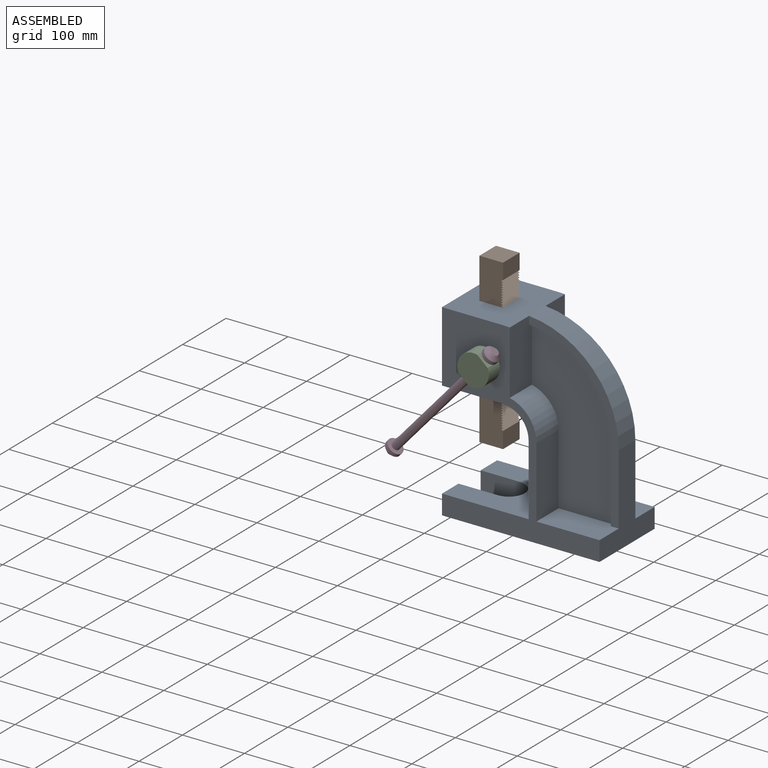
[diagram: assembled view]
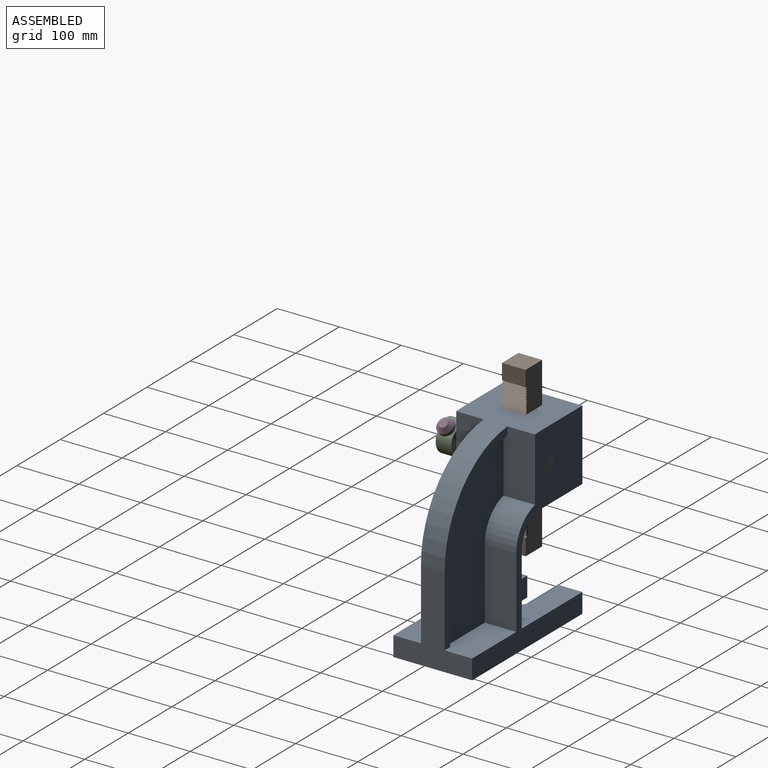
[diagram: assembled view, second angle]
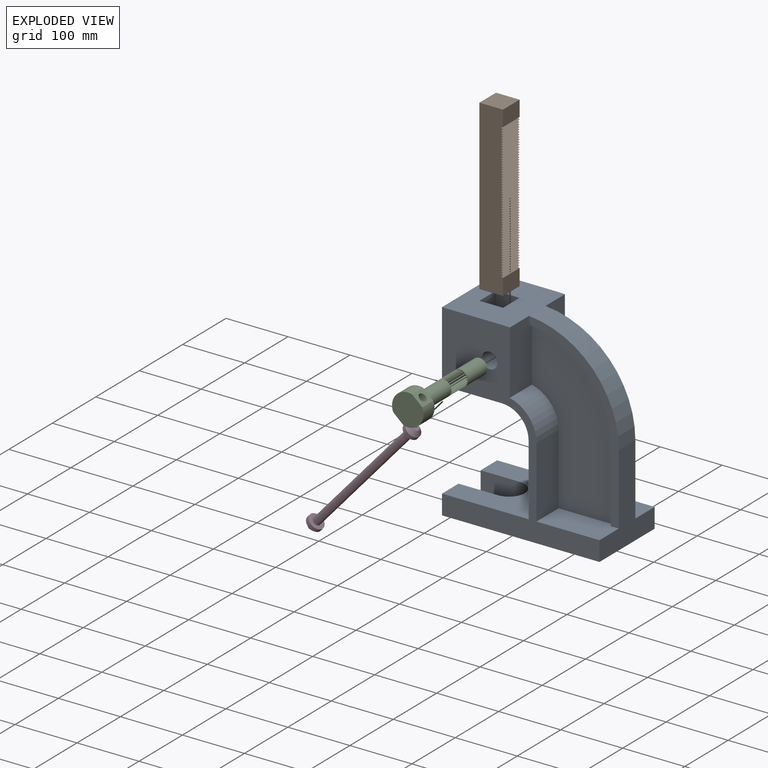
[diagram: exploded view]
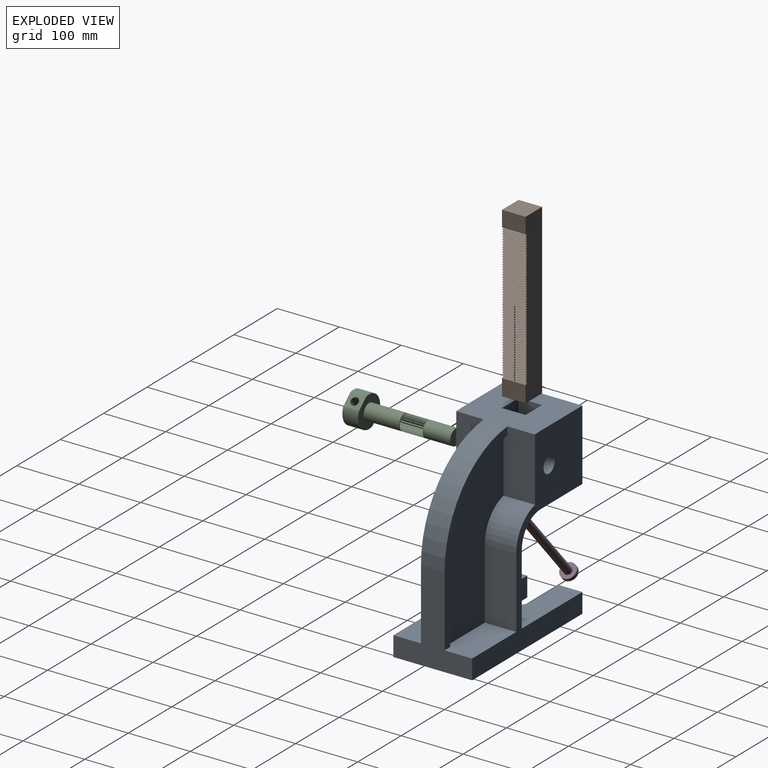
[diagram: exploded view, second angle]
ASSEMBLY  parts=4 mates=3
PART A: 38 faces, bbox 254x127x303.5 mm
  f0: plane 48.75x38.1mm, normal (-1,0,0), area 1857.4mm2, adj f31,f33,f36,f37
  f1: plane 102.55x50.8mm, normal (1,0,0), area 5128.6mm2, adj f14,f21,f22,f25,f26,f29
  f2: plane 101.6x50.8mm, normal (0,0,1), area 5080.6mm2, adj f14,f15,f20,f24,f26,f29
  f3: plane 114.3x6.35mm, normal (-1,0,0), area 725.8mm2, adj f6,f8,f27,f28
  f4: plane 114.3x50.8mm, normal (1,0,0), area 5806.4mm2, adj f5,f8,f16,f28
  f5: cylinder r=55.88mm len=54.42mm, axis (0,-1,0), area 3808.2mm2, adj f4,f7,f16,f28
  f6: cylinder r=144.78mm len=144.22mm, axis (0,1,0), area 1363.4mm2, adj f3,f7,f27,f28
  f7: plane 102.55x50.8mm, normal (1,0,0), area 5128.6mm2, adj f5,f6,f16,f22,f27,f28
  f8: plane 101.6x50.8mm, normal (0,0,1), area 5080.6mm2, adj f3,f4,f15,f16,f27,f28
  f9: plane 38.1x31.75mm, normal (-1,0,0), area 1209.7mm2, adj f10,f16,f17,f18
  f10: plane 63.5x31.75mm, normal (0,-1,0), area 2016.1mm2, adj f9,f11,f17,f18
  f11: cylinder r=25.4mm len=50.8mm, axis (0,0,-1), area 2533.5mm2, adj f10,f12,f17,f18
  f12: plane 63.5x31.75mm, normal (0,1,0), area 2016.1mm2, adj f11,f13,f17,f18
  f13: plane 38.1x31.75mm, normal (-1,0,0), area 1209.7mm2, adj f12,f14,f17,f18
  f14: plane 303.53x254mm, normal (0,-1,0), area 22324mm2, adj f1,f2,f13,f15,f17,f18,f19,f20
  f15: plane 146.05x127mm, normal (1,0,0), area 8387.1mm2, adj f2,f8,f14,f16,f18,f22,f26,f27
  f16: plane 303.53x254mm, normal (0,1,0), area 22324mm2, adj f4,f5,f7,f8,f9,f15,f17,f18
  f17: plane 139.7x127mm, normal (0,0,1), area 13502.7mm2, adj f9,f10,f11,f12,f13,f14,f16,f19
  f18: plane 254x127mm, normal (0,0,-1), area 28018.8mm2, adj f9,f10,f11,f12,f13,f14,f15,f16
  f19: plane 127x114.3mm, normal (-1,0,0), area 14516.1mm2, adj f14,f16,f17,f23
  f20: plane 114.3x50.8mm, normal (1,0,0), area 5806.4mm2, adj f2,f14,f21,f29
  f21: cylinder r=55.88mm len=54.42mm, axis (0,-1,0), area 3808.2mm2, adj f1,f14,f20,f29
  f22: cylinder r=157.48mm len=157.48mm, axis (0,-1,0), area 10555mm2, adj f1,f7,f14,f15,f16,f26,f27,f31
  f23: cylinder r=43.18mm len=127mm, axis (0,-1,0), area 8614mm2, adj f14,f16,f19,f32
  f24: plane 114.3x6.35mm, normal (-1,0,0), area 725.8mm2, adj f2,f25,f26,f29
  f25: cylinder r=144.78mm len=144.22mm, axis (0,1,0), area 1363.4mm2, adj f1,f24,f26,f29
  f26: plane 271.27x144.78mm, normal (0,-1,0), area 4305mm2, adj f1,f2,f15,f22,f24,f25
  f27: plane 271.27x144.78mm, normal (0,1,0), area 4305mm2, adj f3,f6,f7,f8,f15,f22
  f28: plane 258.52x132.08mm, normal (0,1,0), area 23038.9mm2, adj f3,f4,f5,f6,f7,f8
  f29: plane 258.52x132.08mm, normal (0,-1,0), area 23038.9mm2, adj f1,f2,f20,f21,f24,f25
  f30: plane 127x114.3mm, normal (-1,0,0), area 14516.1mm2, adj f14,f16,f31,f32
  f31: plane 127x96.52mm, normal (0,0,1), area 10806.4mm2, adj f0,f14,f16,f22,f30,f33,f34,f36
  f32: plane 127x96.52mm, normal (0,0,-1), area 10806.4mm2, adj f14,f16,f23,f30,f33,f34,f35,f36
  f33: plane 114.3x38.1mm, normal (0,1,0), area 4318.3mm2, adj f0,f31,f32,f34,f35,f37
  f34: plane 114.3x38.1mm, normal (1,0,0), area 4354.8mm2, adj f31,f32,f33,f36
  f35: plane 48.75x38.1mm, normal (-1,0,0), area 1857.4mm2, adj f32,f33,f36,f37
  f36: plane 114.3x38.1mm, normal (0,-1,0), area 4318.3mm2, adj f0,f31,f32,f34,f35,f37
  f37: cylinder r=12.7mm len=127mm, axis (0,-1,0), area 9434.7mm2, adj f0,f14,f16,f33,f35,f36
PART B: 127 faces, bbox 38.1x38.1x271.8 mm
  f0: plane 38.1x25.4mm, normal (1,0,0), area 967.7mm2, adj f1,f2,f5,f125
  f1: plane 271.78x38.1mm, normal (0,-1,0), area 10005.6mm2, adj f0,f3,f4,f5,f6,f7,f8,f9
  f2: plane 271.78x38.1mm, normal (0,1,0), area 10005.6mm2, adj f0,f3,f4,f5,f6,f7,f8,f9
  f3: plane 271.78x38.1mm, normal (-1,0,0), area 10354.8mm2, adj f1,f2,f5,f6
  f4: plane 38.1x26.41mm, normal (1,0,0), area 1006.2mm2, adj f1,f2,f6,f8
  f5: plane 38.1x38.1mm, normal (0,0,1), area 1451.6mm2, adj f0,f1,f2,f3
  f6: plane 38.1x38.1mm, normal (0,0,-1), area 1451.6mm2, adj f1,f2,f3,f4
  f7: plane 38.1x3.18mm, normal (0.5,0,-0.87), area 139.7mm2, adj f1,f2,f8,f124
  f8: plane 38.1x3.18mm, normal (0.5,0,0.87), area 139.7mm2, adj f1,f2,f4,f7
  f9: plane 38.1x3.18mm, normal (0.5,0,-0.87), area 139.7mm2, adj f1,f2,f10,f122
  f10: plane 38.1x3.18mm, normal (0.5,0,0.87), area 139.7mm2, adj f1,f2,f9,f123
  f11: plane 38.1x3.18mm, normal (0.5,0,-0.87), area 139.7mm2, adj f1,f2,f12,f120
  f12: plane 38.1x3.18mm, normal (0.5,0,0.87), area 139.7mm2, adj f1,f2,f11,f121
  f13: plane 38.1x3.18mm, normal (0.5,0,-0.87), area 139.7mm2, adj f1,f2,f14,f118
  f14: plane 38.1x3.18mm, normal (0.5,0,0.87), area 139.7mm2, adj f1,f2,f13,f119
  f15: plane 38.1x3.18mm, normal (0.5,0,-0.87), area 139.7mm2, adj f1,f2,f16,f116
  f16: plane 38.1x3.18mm, normal (0.5,0,0.87), area 139.7mm2, adj f1,f2,f15,f117
  f17: plane 38.1x3.18mm, normal (0.5,0,-0.87), area 139.7mm2, adj f1,f2,f18,f114
  f18: plane 38.1x3.18mm, normal (0.5,0,0.87), area 139.7mm2, adj f1,f2,f17,f115
  f19: plane 38.1x3.18mm, normal (0.5,0,-0.87), area 139.7mm2, adj f1,f2,f20,f112
  f20: plane 38.1x3.18mm, normal (0.5,0,0.87), area 139.7mm2, adj f1,f2,f19,f113
  f21: plane 38.1x3.18mm, normal (0.5,0,-0.87), area 139.7mm2, adj f1,f2,f22,f110
  f22: plane 38.1x3.18mm, normal (0.5,0,0.87), area 139.7mm2, adj f1,f2,f21,f111
  f23: plane 38.1x3.18mm, normal (0.5,0,-0.87), area 139.7mm2, adj f1,f2,f24,f108
  f24: plane 38.1x3.18mm, normal (0.5,0,0.87), area 139.7mm2, adj f1,f2,f23,f109
  f25: plane 38.1x3.18mm, normal (0.5,0,-0.87), area 139.7mm2, adj f1,f2,f26,f106
  f26: plane 38.1x3.18mm, normal (0.5,0,0.87), area 139.7mm2, adj f1,f2,f25,f107
  f27: plane 38.1x3.18mm, normal (0.5,0,-0.87), area 139.7mm2, adj f1,f2,f28,f104
  f28: plane 38.1x3.18mm, normal (0.5,0,0.87), area 139.7mm2, adj f1,f2,f27,f105
  f29: plane 38.1x3.18mm, normal (0.5,0,-0.87), area 139.7mm2, adj f1,f2,f30,f102
  f30: plane 38.1x3.18mm, normal (0.5,0,0.87), area 139.7mm2, adj f1,f2,f29,f103
  f31: plane 38.1x3.18mm, normal (0.5,0,-0.87), area 139.7mm2, adj f1,f2,f32,f100
  f32: plane 38.1x3.18mm, normal (0.5,0,0.87), area 139.7mm2, adj f1,f2,f31,f101
  f33: plane 38.1x3.18mm, normal (0.5,0,-0.87), area 139.7mm2, adj f1,f2,f34,f98
  f34: plane 38.1x3.18mm, normal (0.5,0,0.87), area 139.7mm2, adj f1,f2,f33,f99
  f35: plane 38.1x3.18mm, normal (0.5,0,-0.87), area 139.7mm2, adj f1,f2,f36,f96
  f36: plane 38.1x3.18mm, normal (0.5,0,0.87), area 139.7mm2, adj f1,f2,f35,f97
  f37: plane 38.1x3.18mm, normal (0.5,0,-0.87), area 139.7mm2, adj f1,f2,f38,f94
  f38: plane 38.1x3.18mm, normal (0.5,0,0.87), area 139.7mm2, adj f1,f2,f37,f95
  f39: plane 38.1x3.18mm, normal (0.5,0,-0.87), area 139.7mm2, adj f1,f2,f40,f92
  f40: plane 38.1x3.18mm, normal (0.5,0,0.87), area 139.7mm2, adj f1,f2,f39,f93
  f41: plane 38.1x3.18mm, normal (0.5,0,-0.87), area 139.7mm2, adj f1,f2,f42,f90
  f42: plane 38.1x3.18mm, normal (0.5,0,0.87), area 139.7mm2, adj f1,f2,f41,f91
  f43: plane 38.1x3.18mm, normal (0.5,0,-0.87), area 139.7mm2, adj f1,f2,f44,f88
  f44: plane 38.1x3.18mm, normal (0.5,0,0.87), area 139.7mm2, adj f1,f2,f43,f89
  f45: plane 38.1x3.18mm, normal (0.5,0,-0.87), area 139.7mm2, adj f1,f2,f46,f86
  f46: plane 38.1x3.18mm, normal (0.5,0,0.87), area 139.7mm2, adj f1,f2,f45,f87
  f47: plane 38.1x3.18mm, normal (0.5,0,-0.87), area 139.7mm2, adj f1,f2,f48,f84
  f48: plane 38.1x3.18mm, normal (0.5,0,0.87), area 139.7mm2, adj f1,f2,f47,f85
  f49: plane 38.1x3.18mm, normal (0.5,0,-0.87), area 139.7mm2, adj f1,f2,f50,f82
  f50: plane 38.1x3.18mm, normal (0.5,0,0.87), area 139.7mm2, adj f1,f2,f49,f83
  f51: plane 38.1x3.18mm, normal (0.5,0,-0.87), area 139.7mm2, adj f1,f2,f52,f80
  f52: plane 38.1x3.18mm, normal (0.5,0,0.87), area 139.7mm2, adj f1,f2,f51,f81
  f53: plane 38.1x3.18mm, normal (0.5,0,-0.87), area 139.7mm2, adj f1,f2,f54,f78
  f54: plane 38.1x3.18mm, normal (0.5,0,0.87), area 139.7mm2, adj f1,f2,f53,f79
  f55: plane 38.1x3.18mm, normal (0.5,0,-0.87), area 139.7mm2, adj f1,f2,f56,f76
  f56: plane 38.1x3.18mm, normal (0.5,0,0.87), area 139.7mm2, adj f1,f2,f55,f77
  f57: plane 38.1x3.18mm, normal (0.5,0,-0.87), area 139.7mm2, adj f1,f2,f58,f74
  f58: plane 38.1x3.18mm, normal (0.5,0,0.87), area 139.7mm2, adj f1,f2,f57,f75
  f59: plane 38.1x3.18mm, normal (0.5,0,-0.87), area 139.7mm2, adj f1,f2,f60,f72
  f60: plane 38.1x3.18mm, normal (0.5,0,0.87), area 139.7mm2, adj f1,f2,f59,f73
  f61: plane 38.1x3.18mm, normal (0.5,0,-0.87), area 139.7mm2, adj f1,f2,f62,f70
  f62: plane 38.1x3.18mm, normal (0.5,0,0.87), area 139.7mm2, adj f1,f2,f61,f71
  f63: plane 38.1x3.18mm, normal (0.5,0,-0.87), area 139.7mm2, adj f1,f2,f64,f68
  f64: plane 38.1x3.18mm, normal (0.5,0,0.87), area 139.7mm2, adj f1,f2,f63,f69
  f65: plane 38.1x3.18mm, normal (0.5,0,-0.87), area 139.7mm2, adj f1,f2,f66,f126
  f66: plane 38.1x3.18mm, normal (0.5,0,0.87), area 139.7mm2, adj f1,f2,f65,f67
  f67: plane 38.1x3.18mm, normal (0.5,0,-0.87), area 139.7mm2, adj f1,f2,f66,f68
  f68: plane 38.1x3.18mm, normal (0.5,0,0.87), area 139.7mm2, adj f1,f2,f63,f67
  f69: plane 38.1x3.18mm, normal (0.5,0,-0.87), area 139.7mm2, adj f1,f2,f64,f70
  f70: plane 38.1x3.18mm, normal (0.5,0,0.87), area 139.7mm2, adj f1,f2,f61,f69
  f71: plane 38.1x3.18mm, normal (0.5,0,-0.87), area 139.7mm2, adj f1,f2,f62,f72
  f72: plane 38.1x3.18mm, normal (0.5,0,0.87), area 139.7mm2, adj f1,f2,f59,f71
  f73: plane 38.1x3.18mm, normal (0.5,0,-0.87), area 139.7mm2, adj f1,f2,f60,f74
  f74: plane 38.1x3.18mm, normal (0.5,0,0.87), area 139.7mm2, adj f1,f2,f57,f73
  f75: plane 38.1x3.18mm, normal (0.5,0,-0.87), area 139.7mm2, adj f1,f2,f58,f76
  f76: plane 38.1x3.18mm, normal (0.5,0,0.87), area 139.7mm2, adj f1,f2,f55,f75
  f77: plane 38.1x3.18mm, normal (0.5,0,-0.87), area 139.7mm2, adj f1,f2,f56,f78
  f78: plane 38.1x3.18mm, normal (0.5,0,0.87), area 139.7mm2, adj f1,f2,f53,f77
  f79: plane 38.1x3.18mm, normal (0.5,0,-0.87), area 139.7mm2, adj f1,f2,f54,f80
  f80: plane 38.1x3.18mm, normal (0.5,0,0.87), area 139.7mm2, adj f1,f2,f51,f79
  f81: plane 38.1x3.18mm, normal (0.5,0,-0.87), area 139.7mm2, adj f1,f2,f52,f82
  f82: plane 38.1x3.18mm, normal (0.5,0,0.87), area 139.7mm2, adj f1,f2,f49,f81
  f83: plane 38.1x3.18mm, normal (0.5,0,-0.87), area 139.7mm2, adj f1,f2,f50,f84
  f84: plane 38.1x3.18mm, normal (0.5,0,0.87), area 139.7mm2, adj f1,f2,f47,f83
  f85: plane 38.1x3.18mm, normal (0.5,0,-0.87), area 139.7mm2, adj f1,f2,f48,f86
  f86: plane 38.1x3.18mm, normal (0.5,0,0.87), area 139.7mm2, adj f1,f2,f45,f85
  f87: plane 38.1x3.18mm, normal (0.5,0,-0.87), area 139.7mm2, adj f1,f2,f46,f88
  f88: plane 38.1x3.18mm, normal (0.5,0,0.87), area 139.7mm2, adj f1,f2,f43,f87
  f89: plane 38.1x3.18mm, normal (0.5,0,-0.87), area 139.7mm2, adj f1,f2,f44,f90
  f90: plane 38.1x3.18mm, normal (0.5,0,0.87), area 139.7mm2, adj f1,f2,f41,f89
  f91: plane 38.1x3.18mm, normal (0.5,0,-0.87), area 139.7mm2, adj f1,f2,f42,f92
  f92: plane 38.1x3.18mm, normal (0.5,0,0.87), area 139.7mm2, adj f1,f2,f39,f91
  f93: plane 38.1x3.18mm, normal (0.5,0,-0.87), area 139.7mm2, adj f1,f2,f40,f94
  f94: plane 38.1x3.18mm, normal (0.5,0,0.87), area 139.7mm2, adj f1,f2,f37,f93
  f95: plane 38.1x3.18mm, normal (0.5,0,-0.87), area 139.7mm2, adj f1,f2,f38,f96
  f96: plane 38.1x3.18mm, normal (0.5,0,0.87), area 139.7mm2, adj f1,f2,f35,f95
  f97: plane 38.1x3.18mm, normal (0.5,0,-0.87), area 139.7mm2, adj f1,f2,f36,f98
  f98: plane 38.1x3.18mm, normal (0.5,0,0.87), area 139.7mm2, adj f1,f2,f33,f97
  f99: plane 38.1x3.18mm, normal (0.5,0,-0.87), area 139.7mm2, adj f1,f2,f34,f100
  f100: plane 38.1x3.18mm, normal (0.5,0,0.87), area 139.7mm2, adj f1,f2,f31,f99
  f101: plane 38.1x3.18mm, normal (0.5,0,-0.87), area 139.7mm2, adj f1,f2,f32,f102
  f102: plane 38.1x3.18mm, normal (0.5,0,0.87), area 139.7mm2, adj f1,f2,f29,f101
  f103: plane 38.1x3.18mm, normal (0.5,0,-0.87), area 139.7mm2, adj f1,f2,f30,f104
  f104: plane 38.1x3.18mm, normal (0.5,0,0.87), area 139.7mm2, adj f1,f2,f27,f103
  f105: plane 38.1x3.18mm, normal (0.5,0,-0.87), area 139.7mm2, adj f1,f2,f28,f106
  f106: plane 38.1x3.18mm, normal (0.5,0,0.87), area 139.7mm2, adj f1,f2,f25,f105
  f107: plane 38.1x3.18mm, normal (0.5,0,-0.87), area 139.7mm2, adj f1,f2,f26,f108
  f108: plane 38.1x3.18mm, normal (0.5,0,0.87), area 139.7mm2, adj f1,f2,f23,f107
  f109: plane 38.1x3.18mm, normal (0.5,0,-0.87), area 139.7mm2, adj f1,f2,f24,f110
  f110: plane 38.1x3.18mm, normal (0.5,0,0.87), area 139.7mm2, adj f1,f2,f21,f109
  f111: plane 38.1x3.18mm, normal (0.5,0,-0.87), area 139.7mm2, adj f1,f2,f22,f112
  f112: plane 38.1x3.18mm, normal (0.5,0,0.87), area 139.7mm2, adj f1,f2,f19,f111
  f113: plane 38.1x3.18mm, normal (0.5,0,-0.87), area 139.7mm2, adj f1,f2,f20,f114
  f114: plane 38.1x3.18mm, normal (0.5,0,0.87), area 139.7mm2, adj f1,f2,f17,f113
  f115: plane 38.1x3.18mm, normal (0.5,0,-0.87), area 139.7mm2, adj f1,f2,f18,f116
  f116: plane 38.1x3.18mm, normal (0.5,0,0.87), area 139.7mm2, adj f1,f2,f15,f115
  f117: plane 38.1x3.18mm, normal (0.5,0,-0.87), area 139.7mm2, adj f1,f2,f16,f118
  f118: plane 38.1x3.18mm, normal (0.5,0,0.87), area 139.7mm2, adj f1,f2,f13,f117
  f119: plane 38.1x3.18mm, normal (0.5,0,-0.87), area 139.7mm2, adj f1,f2,f14,f120
  f120: plane 38.1x3.18mm, normal (0.5,0,0.87), area 139.7mm2, adj f1,f2,f11,f119
  f121: plane 38.1x3.18mm, normal (0.5,0,-0.87), area 139.7mm2, adj f1,f2,f12,f122
  f122: plane 38.1x3.18mm, normal (0.5,0,0.87), area 139.7mm2, adj f1,f2,f9,f121
  f123: plane 38.1x3.18mm, normal (0.5,0,-0.87), area 139.7mm2, adj f1,f2,f10,f124
  f124: plane 38.1x3.18mm, normal (0.5,0,0.87), area 139.7mm2, adj f1,f2,f7,f123
  f125: plane 38.1x3.18mm, normal (0.5,0,-0.87), area 139.7mm2, adj f0,f1,f2,f126
  f126: plane 38.1x3.18mm, normal (0.5,0,0.87), area 139.7mm2, adj f1,f2,f65,f125
PART C: 93 faces, bbox 50.8x165.1x45.7 mm
  f0: cylinder r=12.7mm len=139.7mm, axis (0,1,0), area 8204mm2, adj f1,f7,f9,f10,f11,f12,f13,f14
  f1: plane 25.4x25.4mm, normal (0,1,0), area 506.7mm2, adj f0
  f2: plane 25.4x22.14mm, normal (0,0,1), area 435.8mm2, adj f3,f5,f6,f7,f8
  f3: cylinder r=25.4mm len=45.72mm, axis (0,1,0), area 1444.9mm2, adj f2,f4,f6,f7
  f4: plane 25.4x22.14mm, normal (0,0,-1), area 435.8mm2, adj f3,f5,f6,f7,f8
  f5: cylinder r=25.4mm len=45.72mm, axis (0,1,0), area 1444.9mm2, adj f2,f4,f6,f7
  f6: plane 50.8x45.72mm, normal (0,-1,0), area 1951.1mm2, adj f2,f3,f4,f5
  f7: plane 50.8x45.72mm, normal (0,1,0), area 1444.3mm2, adj f0,f2,f3,f4,f5
  f8: cylinder r=6.35mm len=45.72mm, axis (0,0,1), area 1824.1mm2, adj f2,f4
  f9: plane 38.1x3.18mm, normal (-0.5,0,0.87), area 139.7mm2, adj f0,f10,f11,f12
  f10: plane 38.1x3.18mm, normal (-0.5,0,-0.87), area 139.7mm2, adj f0,f9,f11,f12
  f11: plane 3.67x3.31mm, normal (0,1,0), area 6.1mm2, adj f0,f9,f10
  f12: plane 3.67x3.31mm, normal (0,-1,0), area 6.1mm2, adj f0,f9,f10
  f13: plane 38.1x3.5mm, normal (0.96,0,0.29), area 139.7mm2, adj f0,f14,f15,f16
  f14: plane 38.1x3.57mm, normal (-0.22,0,-0.97), area 139.7mm2, adj f0,f13,f15,f16
  f15: plane 3.57x3.5mm, normal (0,1,0), area 6.1mm2, adj f0,f13,f14
  f16: plane 3.57x3.5mm, normal (0,-1,0), area 6.1mm2, adj f0,f13,f14
  f17: plane 38.1x3.67mm, normal (1,0,0), area 139.7mm2, adj f0,f18,f19,f20
  f18: plane 38.1x3.18mm, normal (-0.5,0,-0.87), area 139.7mm2, adj f0,f17,f19,f20
  f19: plane 3.67x3.18mm, normal (0,1,0), area 6.1mm2, adj f0,f17,f18
  f20: plane 3.67x3.18mm, normal (0,-1,0), area 6.1mm2, adj f0,f17,f18
  f21: plane 38.1x3.03mm, normal (0.83,0,0.56), area 139.7mm2, adj f0,f22,f23,f24
  f22: plane 38.1x3.66mm, normal (0.07,0,-1), area 139.7mm2, adj f0,f21,f23,f24
  f23: plane 3.66x3.3mm, normal (0,1,0), area 6.1mm2, adj f0,f21,f22
  f24: plane 3.66x3.3mm, normal (0,-1,0), area 6.1mm2, adj f0,f21,f22
  f25: plane 38.1x2.87mm, normal (0.62,0,0.78), area 139.7mm2, adj f0,f26,f27,f28
  f26: plane 38.1x3.41mm, normal (0.37,0,-0.93), area 139.7mm2, adj f0,f25,f27,f28
  f27: plane 3.63x3.41mm, normal (0,1,0), area 6.1mm2, adj f0,f25,f26
  f28: plane 3.63x3.41mm, normal (0,-1,0), area 6.1mm2, adj f0,f25,f26
  f29: plane 38.1x3.57mm, normal (-0.22,0,0.97), area 139.7mm2, adj f0,f30,f31,f32
  f30: plane 38.1x3.5mm, normal (0.96,0,-0.29), area 139.7mm2, adj f0,f29,f31,f32
  f31: plane 3.57x3.5mm, normal (0,1,0), area 6.1mm2, adj f0,f29,f30
  f32: plane 3.57x3.5mm, normal (0,-1,0), area 6.1mm2, adj f0,f29,f30
  f33: plane 38.1x3.18mm, normal (-0.5,0,0.87), area 139.7mm2, adj f0,f34,f35,f36
  f34: plane 38.1x3.67mm, normal (1,0,0), area 139.7mm2, adj f0,f33,f35,f36
  f35: plane 3.67x3.18mm, normal (0,1,0), area 6.1mm2, adj f0,f33,f34
  f36: plane 3.67x3.18mm, normal (0,-1,0), area 6.1mm2, adj f0,f33,f34
  f37: plane 38.1x3.66mm, normal (0.07,0,1), area 139.7mm2, adj f0,f38,f39,f40
  f38: plane 38.1x3.03mm, normal (0.83,0,-0.56), area 139.7mm2, adj f0,f37,f39,f40
  f39: plane 3.66x3.3mm, normal (0,1,0), area 6.1mm2, adj f0,f37,f38
  f40: plane 3.66x3.3mm, normal (0,-1,0), area 6.1mm2, adj f0,f37,f38
  f41: plane 38.1x3.41mm, normal (0.37,0,0.93), area 139.7mm2, adj f0,f42,f43,f44
  f42: plane 38.1x2.87mm, normal (0.62,0,-0.78), area 139.7mm2, adj f0,f41,f43,f44
  f43: plane 3.63x3.41mm, normal (0,1,0), area 6.1mm2, adj f0,f41,f42
  f44: plane 3.63x3.41mm, normal (0,-1,0), area 6.1mm2, adj f0,f41,f42
  f45: plane 38.1x2.69mm, normal (-0.73,0,0.68), area 139.7mm2, adj f0,f46,f47,f48
  f46: plane 38.1x3.5mm, normal (0.96,0,0.29), area 139.7mm2, adj f0,f45,f47,f48
  f47: plane 3.57x3.5mm, normal (0,1,0), area 6.1mm2, adj f0,f45,f46
  f48: plane 3.57x3.5mm, normal (0,-1,0), area 6.1mm2, adj f0,f45,f46
  f49: plane 38.1x3.3mm, normal (-0.9,0,0.43), area 139.7mm2, adj f0,f50,f51,f52
  f50: plane 38.1x3.03mm, normal (0.83,0,0.56), area 139.7mm2, adj f0,f49,f51,f52
  f51: plane 3.66x3.33mm, normal (0,1,0), area 6.1mm2, adj f0,f49,f50
  f52: plane 3.66x3.33mm, normal (0,-1,0), area 6.1mm2, adj f0,f49,f50
  f53: plane 38.1x3.63mm, normal (-0.99,0,-0.15), area 139.7mm2, adj f0,f54,f55,f56
  f54: plane 38.1x3.41mm, normal (0.37,0,0.93), area 139.7mm2, adj f0,f53,f55,f56
  f55: plane 3.63x3.41mm, normal (0,1,0), area 6.1mm2, adj f0,f53,f54
  f56: plane 3.63x3.41mm, normal (0,-1,0), area 6.1mm2, adj f0,f53,f54
  f57: plane 38.1x3.63mm, normal (-0.99,0,0.15), area 139.7mm2, adj f0,f58,f59,f60
  f58: plane 38.1x2.87mm, normal (0.62,0,0.78), area 139.7mm2, adj f0,f57,f59,f60
  f59: plane 3.63x3.41mm, normal (0,1,0), area 6.1mm2, adj f0,f57,f58
  f60: plane 3.63x3.41mm, normal (0,-1,0), area 6.1mm2, adj f0,f57,f58
  f61: plane 38.1x3.5mm, normal (0.96,0,-0.29), area 139.7mm2, adj f0,f62,f63,f64
  f62: plane 38.1x2.69mm, normal (-0.73,0,-0.68), area 139.7mm2, adj f0,f61,f63,f64
  f63: plane 3.57x3.5mm, normal (0,1,0), area 6.1mm2, adj f0,f61,f62
  f64: plane 3.57x3.5mm, normal (0,-1,0), area 6.1mm2, adj f0,f61,f62
  f65: plane 38.1x3.03mm, normal (0.83,0,-0.56), area 139.7mm2, adj f0,f66,f67,f68
  f66: plane 38.1x3.3mm, normal (-0.9,0,-0.43), area 139.7mm2, adj f0,f65,f67,f68
  f67: plane 3.66x3.33mm, normal (0,1,0), area 6.1mm2, adj f0,f65,f66
  f68: plane 3.66x3.33mm, normal (0,-1,0), area 6.1mm2, adj f0,f65,f66
  f69: plane 38.1x3.41mm, normal (0.37,0,-0.93), area 139.7mm2, adj f0,f70,f71,f72
  f70: plane 38.1x3.63mm, normal (-0.99,0,0.15), area 139.7mm2, adj f0,f69,f71,f72
  f71: plane 3.63x3.41mm, normal (0,1,0), area 6.1mm2, adj f0,f69,f70
  f72: plane 3.63x3.41mm, normal (0,-1,0), area 6.1mm2, adj f0,f69,f70
  f73: plane 38.1x2.87mm, normal (0.62,0,-0.78), area 139.7mm2, adj f0,f74,f75,f76
  f74: plane 38.1x3.63mm, normal (-0.99,0,-0.15), area 139.7mm2, adj f0,f73,f75,f76
  f75: plane 3.63x3.41mm, normal (0,1,0), area 6.1mm2, adj f0,f73,f74
  f76: plane 3.63x3.41mm, normal (0,-1,0), area 6.1mm2, adj f0,f73,f74
  f77: plane 38.1x3.57mm, normal (-0.22,0,-0.97), area 139.7mm2, adj f0,f78,f79,f80
  f78: plane 38.1x2.69mm, normal (-0.73,0,0.68), area 139.7mm2, adj f0,f77,f79,f80
  f79: plane 3.57x3.5mm, normal (0,1,0), area 6.1mm2, adj f0,f77,f78
  f80: plane 3.57x3.5mm, normal (0,-1,0), area 6.1mm2, adj f0,f77,f78
  f81: plane 38.1x3.66mm, normal (0.07,0,-1), area 139.7mm2, adj f0,f82,f83,f84
  f82: plane 38.1x3.3mm, normal (-0.9,0,0.43), area 139.7mm2, adj f0,f81,f83,f84
  f83: plane 3.66x3.3mm, normal (0,1,0), area 6.1mm2, adj f0,f81,f82
  f84: plane 3.66x3.3mm, normal (0,-1,0), area 6.1mm2, adj f0,f81,f82
  f85: plane 38.1x3.3mm, normal (-0.9,0,-0.43), area 139.7mm2, adj f0,f86,f87,f88
  f86: plane 38.1x3.66mm, normal (0.07,0,1), area 139.7mm2, adj f0,f85,f87,f88
  f87: plane 3.66x3.3mm, normal (0,1,0), area 6.1mm2, adj f0,f85,f86
  f88: plane 3.66x3.3mm, normal (0,-1,0), area 6.1mm2, adj f0,f85,f86
  f89: plane 38.1x2.69mm, normal (-0.73,0,-0.68), area 139.7mm2, adj f0,f90,f91,f92
  f90: plane 38.1x3.57mm, normal (-0.22,0,0.97), area 139.7mm2, adj f0,f89,f91,f92
  f91: plane 3.57x3.5mm, normal (0,1,0), area 6.1mm2, adj f0,f89,f90
  f92: plane 3.57x3.5mm, normal (0,-1,0), area 6.1mm2, adj f0,f89,f90
PART D: 9 faces, bbox 25.4x25.4x254 mm
  f0: cylinder r=12.7mm len=25.4mm, axis (0,0,-1), area 506.7mm2, adj f1,f7
  f1: plane 25.4x25.4mm, normal (0,0,1), area 380mm2, adj f0,f3
  f2: plane 12.7x12.7mm, normal (0,0,-1), area 126.7mm2, adj f7
  f3: cylinder r=6.35mm len=228.6mm, axis (0,0,-1), area 9120.7mm2, adj f1,f6
  f4: cylinder r=12.7mm len=25.4mm, axis (0,0,-1), area 506.7mm2, adj f6,f8
  f5: plane 12.7x12.7mm, normal (0,0,1), area 126.7mm2, adj f8
  f6: plane 25.4x25.4mm, normal (0,0,-1), area 380mm2, adj f3,f4
  f7: cone r=12.7mm half-angle=45deg, axis (0,0,1), area 537.4mm2, adj f0,f2
  f8: cone r=6.35mm half-angle=45deg, axis (0,0,-1), area 537.4mm2, adj f4,f5
PLACE A at identity fixed
PLACE B t=(0,0,-205.96)mm
PLACE C rot(axis=(0,1,0),41.6deg) t=(-176.1,127,28.76)mm
PLACE D rot(axis=(0.93,0,-0.35),180deg) t=(236.29,-130.62,450.72)mm
MATE slider B.f5 <-> A.f31  axis (0,0,1) through (-78.74,0,369.35)mm
MATE slider D.f0 <-> C.f8  axis (0.66,0,0.75) through (-32.44,-88.9,266.37)mm
MATE revolute C.f3 <-> A.f37  axis (0,1,0) through (-50.17,63.5,246.38)mm
